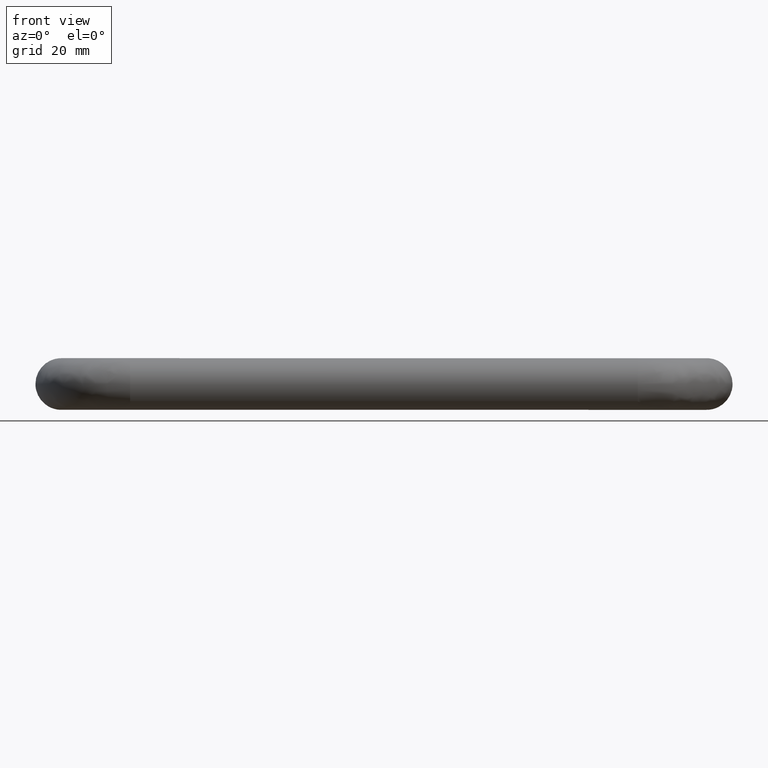
[diagram: clean part render]
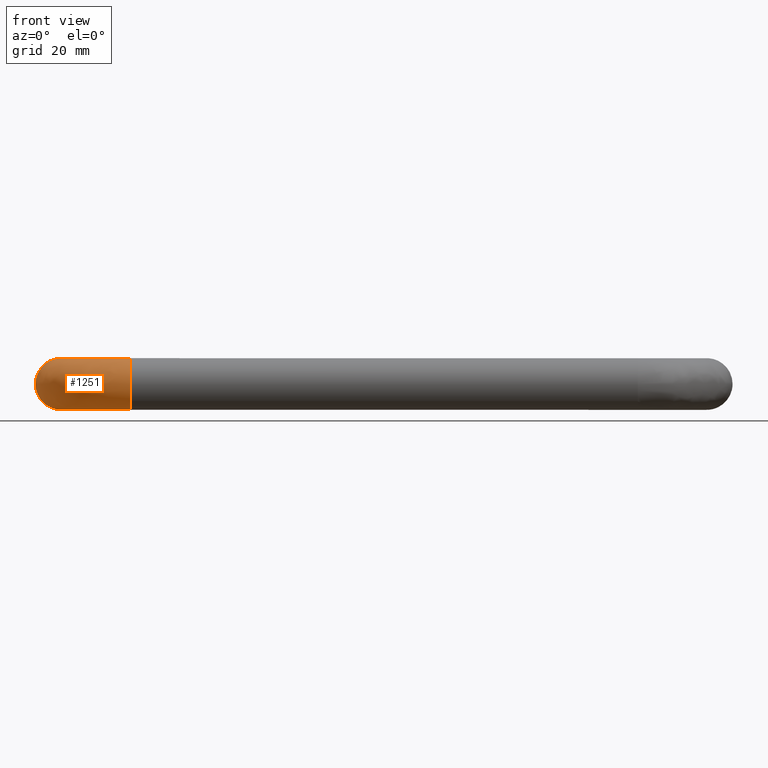
[diagram: same view with one face highlighted and labeled with its STEP entity id]
A machine part, front view. The second image highlights one B-rep face of the part: STEP entity #1251.
In plain terms, the highlighted face is a freeform B-spline surface patch.
Its self-contained STEP definition (entity closure, byte-faithful):
#661=CARTESIAN_POINT('',(16.0,-48.467997402138543,-4.004622231180871));
#662=VERTEX_POINT('',#661);
#668=CARTESIAN_POINT('',(15.999999999141631,-43.581600489424112,-5.985394042964074));
#669=VERTEX_POINT('',#668);
#670=CARTESIAN_POINT('',(15.999999999141634,-43.581600489424105,-5.985394042964075));
#671=CARTESIAN_POINT('',(15.999999999999998,-43.790545303624384,-5.999999999999999));
#672=CARTESIAN_POINT('',(16.0,-44.0,-6.0));
#673=CARTESIAN_POINT('',(15.999999999999998,-46.679559886757495,-6.000000000000001));
#674=CARTESIAN_POINT('',(15.999999999999998,-48.467997402138550,-4.004622231180871));
#682=(BOUNDED_CURVE()B_SPLINE_CURVE(2,(#670,#671,#672,#673,#674),.UNSPECIFIED.,.F.,.U.)B_SPLINE_CURVE_WITH_KNOTS((3,2,3),(0.237833686470585,0.250000000000000,0.383246057558174),.UNSPECIFIED.)CURVE()GEOMETRIC_REPRESENTATION_ITEM()RATIONAL_B_SPLINE_CURVE((0.972879876250539,0.985746277077104,1.0,0.843892533230336,0.854190702480283))REPRESENTATION_ITEM(''));
#683=EDGE_CURVE('',#669,#662,#682,.T.);
#817=CARTESIAN_POINT('',(15.999999999350271,-44.075396242914579,5.999526265177472));
#818=VERTEX_POINT('',#817);
#834=CARTESIAN_POINT('',(16.0,-49.999999999999993,0.0));
#835=VERTEX_POINT('',#834);
#836=CARTESIAN_POINT('',(16.0,-49.999999999999993,0.0));
#837=CARTESIAN_POINT('',(16.000000000000004,-49.999999999999986,5.925071572304105));
#838=CARTESIAN_POINT('',(15.999999999350266,-44.075396242914579,5.999526265177472));
#846=(BOUNDED_CURVE()B_SPLINE_CURVE(2,(#836,#837,#838),.UNSPECIFIED.,.F.,.U.)B_SPLINE_CURVE_WITH_KNOTS((3,3),(0.500000000000000,0.747784295709823),.UNSPECIFIED.)CURVE()GEOMETRIC_REPRESENTATION_ITEM()RATIONAL_B_SPLINE_CURVE((1.0,0.709702640232502,0.994854295156289))REPRESENTATION_ITEM(''));
#847=EDGE_CURVE('',#835,#818,#846,.T.);
#849=CARTESIAN_POINT('',(15.999999999999998,-48.467997402138550,-4.004622231180871));
#850=CARTESIAN_POINT('',(15.999999999999998,-49.999999999999993,-2.295351485488466));
#851=CARTESIAN_POINT('',(16.0,-49.999999999999993,0.0));
#859=(BOUNDED_CURVE()B_SPLINE_CURVE(2,(#849,#850,#851),.UNSPECIFIED.,.F.,.U.)B_SPLINE_CURVE_WITH_KNOTS((3,3),(0.383246057558174,0.500000000000000),.UNSPECIFIED.)CURVE()GEOMETRIC_REPRESENTATION_ITEM()RATIONAL_B_SPLINE_CURVE((0.854190702480283,0.863214247956212,1.0))REPRESENTATION_ITEM(''));
#860=EDGE_CURVE('',#662,#835,#859,.T.);
#884=CARTESIAN_POINT('',(-0.075396244198473,-28.000000000965699,5.999526265161338));
#885=VERTEX_POINT('',#884);
#942=CARTESIAN_POINT('',(-3.735087819826497,-28.0,-4.695648941113859));
#943=VERTEX_POINT('',#942);
#949=CARTESIAN_POINT('',(-5.999999999999996,-28.0,0.0));
#950=VERTEX_POINT('',#949);
#951=CARTESIAN_POINT('',(-3.735087819826497,-27.999999999999996,-4.695648941113859));
#952=CARTESIAN_POINT('',(-5.999999999999996,-27.999999999999989,-2.894056444904187));
#953=CARTESIAN_POINT('',(-5.999999999999996,-28.0,0.0));
#961=(BOUNDED_CURVE()B_SPLINE_CURVE(2,(#951,#952,#953),.UNSPECIFIED.,.F.,.U.)B_SPLINE_CURVE_WITH_KNOTS((3,3),(0.357863877391496,0.500000000000000),.UNSPECIFIED.)CURVE()GEOMETRIC_REPRESENTATION_ITEM()RATIONAL_B_SPLINE_CURVE((0.856305618644054,0.833477174158127,1.0))REPRESENTATION_ITEM(''));
#962=EDGE_CURVE('',#943,#950,#961,.T.);
#964=CARTESIAN_POINT('',(-5.999999999999996,-28.0,0.0));
#965=CARTESIAN_POINT('',(-5.999999999999996,-28.000000000000004,5.925071569767982));
#966=CARTESIAN_POINT('',(-0.075396244198473,-28.000000000965702,5.999526265161338));
#974=(BOUNDED_CURVE()B_SPLINE_CURVE(2,(#964,#965,#966),.UNSPECIFIED.,.F.,.U.)B_SPLINE_CURVE_WITH_KNOTS((3,3),(0.500000000000000,0.747784295634552),.UNSPECIFIED.)CURVE()GEOMETRIC_REPRESENTATION_ITEM()RATIONAL_B_SPLINE_CURVE((1.0,0.709702640320688,0.994854294983045))REPRESENTATION_ITEM(''));
#975=EDGE_CURVE('',#950,#885,#974,.T.);
#1013=CARTESIAN_POINT('',(0.418399511784851,-28.000000001480579,-5.985394042879566));
#1014=VERTEX_POINT('',#1013);
#1028=CARTESIAN_POINT('',(0.418399511784851,-28.000000001480586,-5.985394042879566));
#1029=CARTESIAN_POINT('',(0.209454697589010,-28.0,-6.000000000000001));
#1030=CARTESIAN_POINT('',(3.428898E-015,-28.0,-6.0));
#1031=CARTESIAN_POINT('',(-2.095293800530362,-27.999999999999993,-6.0));
#1032=CARTESIAN_POINT('',(-3.735087819826497,-27.999999999999996,-4.695648941113859));
#1040=(BOUNDED_CURVE()B_SPLINE_CURVE(2,(#1028,#1029,#1030,#1031,#1032),.UNSPECIFIED.,.F.,.U.)B_SPLINE_CURVE_WITH_KNOTS((3,2,3),(0.237833686401109,0.250000000000000,0.357863877391496),.UNSPECIFIED.)CURVE()GEOMETRIC_REPRESENTATION_ITEM()RATIONAL_B_SPLINE_CURVE((0.972879876103592,0.985746276995708,1.0,0.873629607028421,0.856305618644054))REPRESENTATION_ITEM(''));
#1041=EDGE_CURVE('',#1014,#943,#1040,.T.);
#1182=CARTESIAN_POINT('',(0.546684758992157,-26.922813483101724,-5.979047681520187));
#1183=CARTESIAN_POINT('',(-0.691926444804923,-44.691926903157260,-5.979047681520187));
#1184=CARTESIAN_POINT('',(17.077186941238963,-43.453315211428809,-5.979047681520190));
#1185=CARTESIAN_POINT('',(0.501270155561519,-26.919647819441664,-5.982230018344202));
#1186=CARTESIAN_POINT('',(-0.740981110950125,-44.740981570649481,-5.982230018344200));
#1187=CARTESIAN_POINT('',(17.080352606146079,-43.498729814772524,-5.982230018344204));
#1188=CARTESIAN_POINT('',(0.285231963537030,-26.904588693037091,-5.997368459328781));
#1189=CARTESIAN_POINT('',(-0.974335155328387,-44.974335621435536,-5.997368459328783));
#1190=CARTESIAN_POINT('',(17.095411738482944,-43.714768006383508,-5.997368459328781));
#1191=CARTESIAN_POINT('',(0.113943897119562,-26.892648912299236,-5.999526265222896));
#1192=CARTESIAN_POINT('',(-1.159352270486051,-45.159352741673686,-5.999526265222896));
#1193=CARTESIAN_POINT('',(17.107351523924276,-43.886056072473103,-5.999526265222895));
#1194=CARTESIAN_POINT('',(-5.871059703111108,-26.475459132552292,-6.074922504523007));
#1195=CARTESIAN_POINT('',(-7.624064748611073,-51.624065397316620,-6.074922504523005));
#1196=CARTESIAN_POINT('',(17.524541468016576,-49.871059661247941,-6.074922504523006));
#1197=CARTESIAN_POINT('',(-5.946273435613747,-26.470216295188671,-0.075396239300112));
#1198=CARTESIAN_POINT('',(-7.705306997992081,-51.705307648928503,-0.075396239300112));
#1199=CARTESIAN_POINT('',(17.529784307445532,-49.946273393606596,-0.075396239300112));
#1200=CARTESIAN_POINT('',(-6.021487168116381,-26.464973457825039,5.924130025922782));
#1201=CARTESIAN_POINT('',(-7.786549247373084,-51.786549900540393,5.924130025922781));
#1202=CARTESIAN_POINT('',(17.535027146874498,-50.021487125965294,5.924130025922783));
#1203=CARTESIAN_POINT('',(0.007551089547792,-26.885232710919542,6.000080992970967));
#1204=CARTESIAN_POINT('',(-1.274272654270862,-45.274273128614155,6.000080992970968));
#1205=CARTESIAN_POINT('',(17.114767728225470,-43.992448879841220,6.000080992970966));
#1206=CARTESIAN_POINT('',(0.051318164543585,-26.888283532205090,6.000632349842284));
#1207=CARTESIAN_POINT('',(-1.226997568948368,-45.226998041993511,6.000632349842284));
#1208=CARTESIAN_POINT('',(17.111716905738106,-43.948681804929215,6.000632349842284));
#1216=(BOUNDED_SURFACE()B_SPLINE_SURFACE(2,2,((#1182,#1185,#1188,#1191,#1194,#1197,#1200,#1203,#1206),(#1183,#1186,#1189,#1192,#1195,#1198,#1201,#1204,#1207),(#1184,#1187,#1190,#1193,#1196,#1199,#1202,#1205,#1208)),.UNSPECIFIED.,.F.,.F.,.U.)B_SPLINE_SURFACE_WITH_KNOTS((3,3),(3,1,2,2,1,3),(0.0,40.091364059811198),(0.0,0.103626866435612,0.501271507089940,10.442397004044221,20.383522500998499,20.487276854015072),.UNSPECIFIED.)GEOMETRIC_REPRESENTATION_ITEM()RATIONAL_B_SPLINE_SURFACE(((0.896240591341509,0.898830845361799,0.911360612797192,0.922164430830710,0.652068722409428,0.922164430830710,0.652068722409428,0.924983387848040,0.927802344865371),(0.588135444396673,0.589835233732306,0.598057579841146,0.605147314876259,0.427903769965834,0.605147314876259,0.427903769965834,0.606997184826515,0.608847054776772),(0.896240602553820,0.898830856606515,0.911360624198660,0.922164442367337,0.652068730567055,0.922164442367337,0.652068730567055,0.924983399419934,0.927802356472531)))REPRESENTATION_ITEM('')SURFACE());
#1217=ORIENTED_EDGE('',*,*,#683,.T.);
#1218=ORIENTED_EDGE('',*,*,#860,.T.);
#1219=ORIENTED_EDGE('',*,*,#847,.T.);
#1220=CARTESIAN_POINT('',(-0.075396244198473,-28.000000000965709,5.999526265161338));
#1221=CARTESIAN_POINT('',(-0.075396237368702,-44.075396238000657,5.999526265222896));
#1222=CARTESIAN_POINT('',(15.999999999350264,-44.075396242914572,5.999526265177472));
#1230=(BOUNDED_CURVE()B_SPLINE_CURVE(2,(#1220,#1221,#1222),.UNSPECIFIED.,.F.,.U.)B_SPLINE_CURVE_WITH_KNOTS((3,3),(-1.744561813189079,-0.255438186769527),.UNSPECIFIED.)CURVE()GEOMETRIC_REPRESENTATION_ITEM()RATIONAL_B_SPLINE_CURVE((0.894678509997890,0.632633241470108,0.894678510012458))REPRESENTATION_ITEM(''));
#1231=EDGE_CURVE('',#885,#818,#1230,.T.);
#1232=ORIENTED_EDGE('',*,*,#1231,.F.);
#1233=ORIENTED_EDGE('',*,*,#975,.F.);
#1234=ORIENTED_EDGE('',*,*,#962,.F.);
#1235=ORIENTED_EDGE('',*,*,#1041,.F.);
#1236=CARTESIAN_POINT('',(0.418399511784851,-28.000000001480586,-5.985394042879566));
#1237=CARTESIAN_POINT('',(0.418399512413818,-43.581600488830617,-5.985394043042593));
#1238=CARTESIAN_POINT('',(15.999999999141638,-43.581600489424105,-5.985394042964074));
#1246=(BOUNDED_CURVE()B_SPLINE_CURVE(2,(#1236,#1237,#1238),.UNSPECIFIED.,.F.,.U.)B_SPLINE_CURVE_WITH_KNOTS((3,3),(-1.744561813115481,-0.255438186800423),.UNSPECIFIED.)CURVE()GEOMETRIC_REPRESENTATION_ITEM()RATIONAL_B_SPLINE_CURVE((0.874553433344358,0.618402663330830,0.874553433373290))REPRESENTATION_ITEM(''));
#1247=EDGE_CURVE('',#1014,#669,#1246,.T.);
#1248=ORIENTED_EDGE('',*,*,#1247,.T.);
#1249=EDGE_LOOP('',(#1217,#1218,#1219,#1232,#1233,#1234,#1235,#1248));
#1250=FACE_OUTER_BOUND('',#1249,.T.);
#1251=ADVANCED_FACE('',(#1250),#1216,.T.);